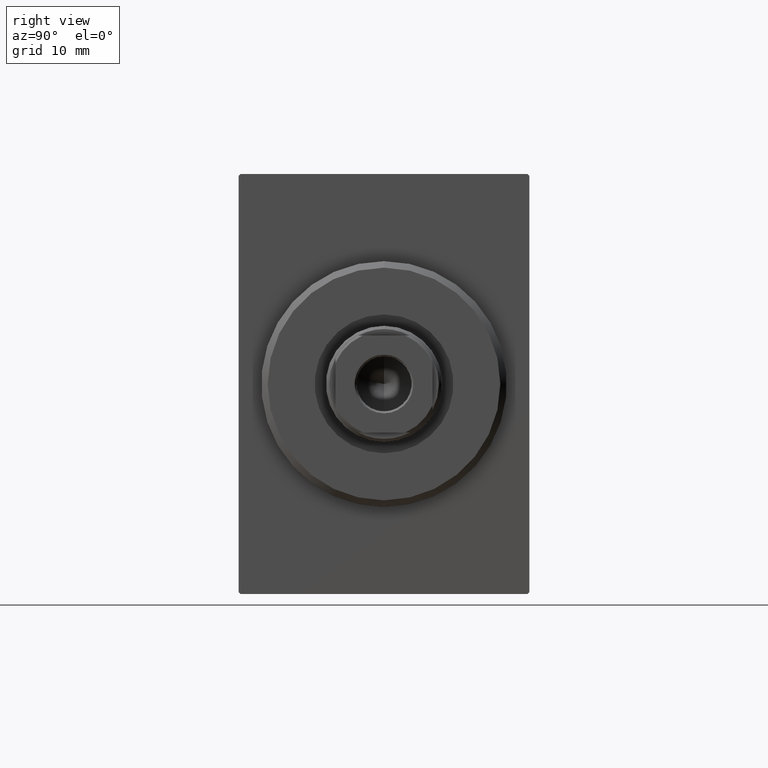
[diagram: clean part render]
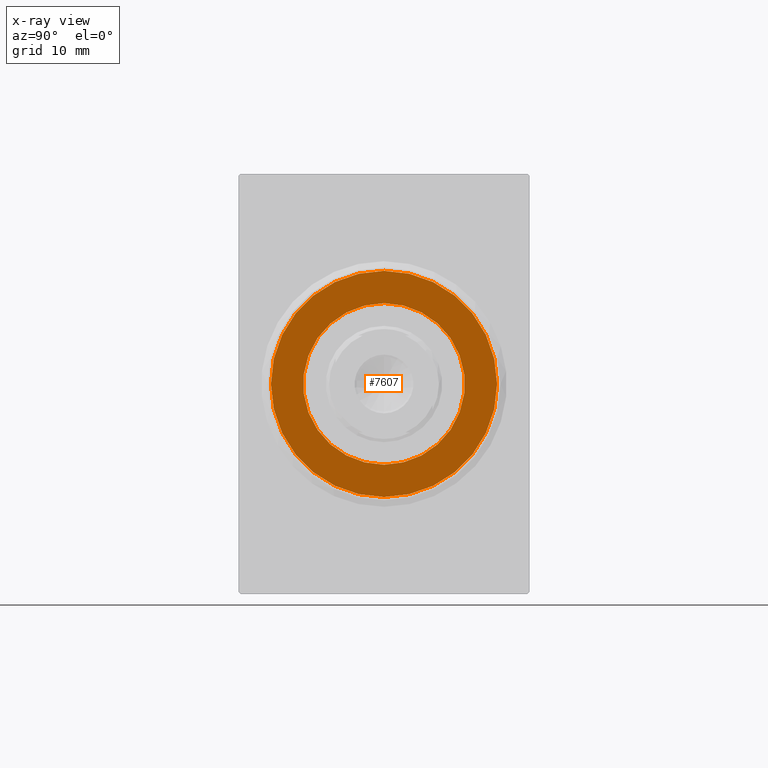
[diagram: x-ray — body ghosted, one internal face saturated and labeled with its STEP entity id]
A machine part, right view, then the same camera in x-ray: the body is ghosted and one INTERNAL B-rep face — a face not visible from any outside direction — is saturated and labeled: STEP entity #7607.
In plain terms, the highlighted planar face has unit normal (1, 0, -0).
Its self-contained STEP definition (entity closure, byte-faithful):
#891 = FACE_OUTER_BOUND ( 'NONE', #25075, .T. ) ;
#1407 = CIRCLE ( 'NONE', #15881, 17.50000000000000355 ) ;
#1957 = CARTESIAN_POINT ( 'NONE',  ( 4.999999999999997335, 0.000000000000000000, 0.000000000000000000 ) ) ;
#2010 = CARTESIAN_POINT ( 'NONE',  ( 5.000000000000000000, 0.000000000000000000, 0.000000000000000000 ) ) ;
#2054 = VERTEX_POINT ( 'NONE', #26857 ) ;
#4394 = VERTEX_POINT ( 'NONE', #41792 ) ;
#4953 = ORIENTED_EDGE ( 'NONE', *, *, #24973, .T. ) ;
#7607 = ADVANCED_FACE ( 'NONE', ( #20265, #891 ), #14009, .T. ) ;
#7952 = CIRCLE ( 'NONE', #32032, 17.50000000000000355 ) ;
#8038 = DIRECTION ( 'NONE',  ( 0.000000000000000000, 0.000000000000000000, 1.000000000000000000 ) ) ;
#8178 = EDGE_CURVE ( 'NONE', #2054, #4394, #7952, .T. ) ;
#9745 = DIRECTION ( 'NONE',  ( -1.000000000000000000, 0.000000000000000000, 0.000000000000000000 ) ) ;
#10564 = CARTESIAN_POINT ( 'NONE',  ( 5.000000000000000000, 0.000000000000000000, 0.000000000000000000 ) ) ;
#13792 = DIRECTION ( 'NONE',  ( -1.000000000000000000, 0.000000000000000000, 0.000000000000000000 ) ) ;
#13961 = CARTESIAN_POINT ( 'NONE',  ( 4.999999999999997335, 1.530808498934191521E-15, -12.50000000000000000 ) ) ;
#14009 = PLANE ( 'NONE',  #30637 ) ;
#14921 = DIRECTION ( 'NONE',  ( -1.000000000000000000, 0.000000000000000000, 0.000000000000000000 ) ) ;
#15881 = AXIS2_PLACEMENT_3D ( 'NONE', #2010, #14921, #20739 ) ;
#16294 = CARTESIAN_POINT ( 'NONE',  ( 4.999999999999997335, 0.000000000000000000, 12.50000000000000000 ) ) ;
#19386 = CIRCLE ( 'NONE', #29003, 12.50000000000000000 ) ;
#20265 = FACE_BOUND ( 'NONE', #30978, .T. ) ;
#20739 = DIRECTION ( 'NONE',  ( 0.000000000000000000, 0.000000000000000000, 1.000000000000000000 ) ) ;
#21538 = DIRECTION ( 'NONE',  ( 0.000000000000000000, 0.000000000000000000, 1.000000000000000000 ) ) ;
#24351 = VERTEX_POINT ( 'NONE', #16294 ) ;
#24973 = EDGE_CURVE ( 'NONE', #4394, #2054, #1407, .T. ) ;
#25075 = EDGE_LOOP ( 'NONE', ( #4953, #40195 ) ) ;
#26207 = VERTEX_POINT ( 'NONE', #13961 ) ;
#26857 = CARTESIAN_POINT ( 'NONE',  ( 5.000000000000000000, 2.143131898507868643E-15, -17.50000000000000355 ) ) ;
#27792 = DIRECTION ( 'NONE',  ( -1.000000000000000000, 0.000000000000000000, 0.000000000000000000 ) ) ;
#29003 = AXIS2_PLACEMENT_3D ( 'NONE', #1957, #27792, #21538 ) ;
#29552 = CARTESIAN_POINT ( 'NONE',  ( 4.999999999999997335, 0.000000000000000000, 0.000000000000000000 ) ) ;
#30046 = EDGE_CURVE ( 'NONE', #26207, #24351, #35932, .T. ) ;
#30637 = AXIS2_PLACEMENT_3D ( 'NONE', #10564, #13792, #40504 ) ;
#30978 = EDGE_LOOP ( 'NONE', ( #39140, #39608 ) ) ;
#32032 = AXIS2_PLACEMENT_3D ( 'NONE', #34101, #40364, #8038 ) ;
#32690 = EDGE_CURVE ( 'NONE', #24351, #26207, #19386, .T. ) ;
#33226 = DIRECTION ( 'NONE',  ( 0.000000000000000000, 0.000000000000000000, 1.000000000000000000 ) ) ;
#34101 = CARTESIAN_POINT ( 'NONE',  ( 5.000000000000000000, 0.000000000000000000, 0.000000000000000000 ) ) ;
#35932 = CIRCLE ( 'NONE', #41347, 12.50000000000000000 ) ;
#39140 = ORIENTED_EDGE ( 'NONE', *, *, #32690, .F. ) ;
#39608 = ORIENTED_EDGE ( 'NONE', *, *, #30046, .F. ) ;
#40195 = ORIENTED_EDGE ( 'NONE', *, *, #8178, .T. ) ;
#40364 = DIRECTION ( 'NONE',  ( -1.000000000000000000, 0.000000000000000000, 0.000000000000000000 ) ) ;
#40504 = DIRECTION ( 'NONE',  ( 0.000000000000000000, 0.000000000000000000, 1.000000000000000000 ) ) ;
#41347 = AXIS2_PLACEMENT_3D ( 'NONE', #29552, #9745, #33226 ) ;
#41792 = CARTESIAN_POINT ( 'NONE',  ( 5.000000000000000000, 0.000000000000000000, 17.50000000000000355 ) ) ;